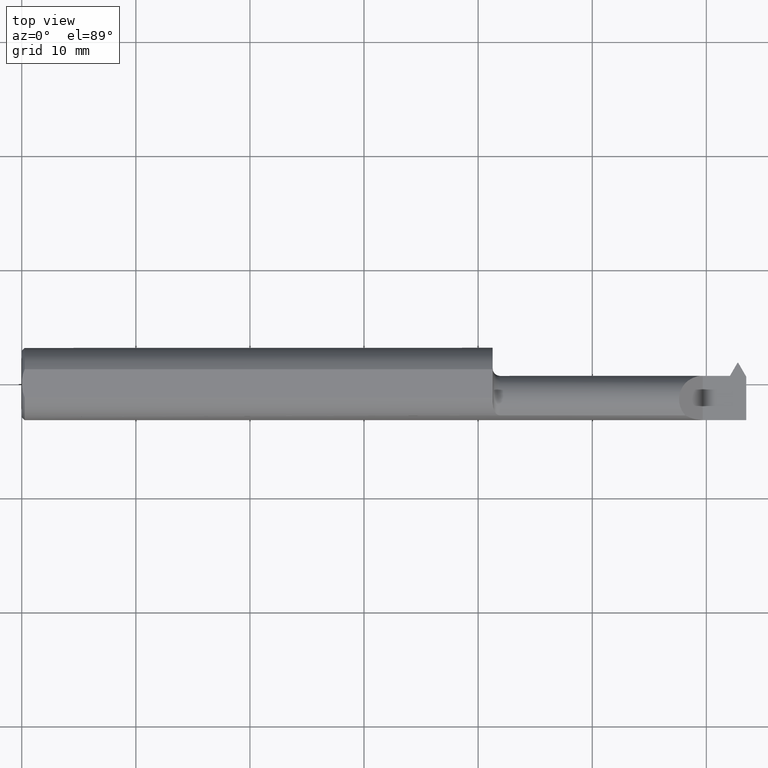
[diagram: clean part render]
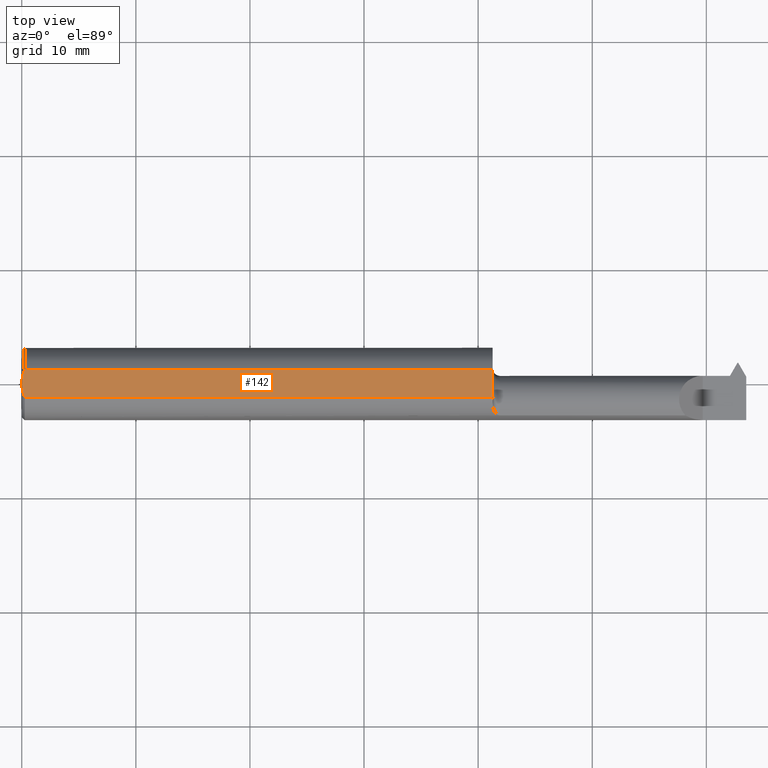
[diagram: same view with one face highlighted and labeled with its STEP entity id]
A machine part, top view. The second image highlights one B-rep face of the part: STEP entity #142.
In plain terms, the highlighted planar face has unit normal (0, 0, 1).
Its self-contained STEP definition (entity closure, byte-faithful):
#5 = EDGE_CURVE ( 'NONE', #692, #199, #251, .T. ) ;
#11 = LINE ( 'NONE', #623, #122 ) ;
#16 = CARTESIAN_POINT ( 'NONE',  ( 0.01000000000000014939, 0.04895916665957469188, 0.1148499999999999521 ) ) ;
#58 = CARTESIAN_POINT ( 'NONE',  ( -7.933430635897561254E-17, -0.008414813278457880172, 0.1148499999999999660 ) ) ;
#69 = CARTESIAN_POINT ( 'NONE',  ( 0.000000000000000000, -0.04895916665957469188, 0.1148499999999999521 ) ) ;
#73 = FACE_OUTER_BOUND ( 'NONE', #657, .T. ) ;
#81 = DIRECTION ( 'NONE',  ( 1.000000000000000000, 0.000000000000000000, 0.000000000000000000 ) ) ;
#99 = VECTOR ( 'NONE', #568, 39.37007874015748143 ) ;
#103 = ORIENTED_EDGE ( 'NONE', *, *, #531, .F. ) ;
#122 = VECTOR ( 'NONE', #195, 39.37007874015748143 ) ;
#133 = CARTESIAN_POINT ( 'NONE',  ( 1.625000000000000222, -0.04895916665957479597, 0.1148499999999999521 ) ) ;
#142 = ADVANCED_FACE ( 'NONE', ( #73 ), #262, .T. ) ;
#162 = EDGE_CURVE ( 'NONE', #467, #199, #11, .T. ) ;
#166 = CARTESIAN_POINT ( 'NONE',  ( 0.01000000000000014939, -0.04895916665957469188, 0.1148499999999999521 ) ) ;
#195 = DIRECTION ( 'NONE',  ( -1.000000000000000000, -0.000000000000000000, -0.000000000000000000 ) ) ;
#199 = VERTEX_POINT ( 'NONE', #16 ) ;
#227 = CARTESIAN_POINT ( 'NONE',  ( 0.004414493321357296045, -0.03313351293251454166, 0.1148499999999999660 ) ) ;
#228 = CARTESIAN_POINT ( 'NONE',  ( 0.000000000000000000, 0.000000000000000000, 0.1148499999999999521 ) ) ;
#246 = EDGE_CURVE ( 'NONE', #427, #551, #494, .T. ) ;
#249 = DIRECTION ( 'NONE',  ( 0.000000000000000000, 0.000000000000000000, 1.000000000000000000 ) ) ;
#251 = B_SPLINE_CURVE_WITH_KNOTS ( 'NONE', 3,
 ( #228, #532, #787, #778 ),
 .UNSPECIFIED., .F., .F.,
 ( 4, 4 ),
 ( 0.002328709147988536343, 0.003597800360742826626 ),
 .UNSPECIFIED. ) ;
#258 = CARTESIAN_POINT ( 'NONE',  ( 1.625000000000000222, 0.1248499999999999471, 0.1148499999999999521 ) ) ;
#262 = PLANE ( 'NONE',  #773 ) ;
#281 = ORIENTED_EDGE ( 'NONE', *, *, #162, .T. ) ;
#295 = ORIENTED_EDGE ( 'NONE', *, *, #246, .T. ) ;
#296 = CARTESIAN_POINT ( 'NONE',  ( 0.000000000000000000, 0.000000000000000000, 0.1148499999999999521 ) ) ;
#303 = DIRECTION ( 'NONE',  ( 1.000000000000000000, 0.000000000000000000, -0.000000000000000000 ) ) ;
#341 = CARTESIAN_POINT ( 'NONE',  ( 1.625000000000000222, 0.04895916665957469188, 0.1148499999999999521 ) ) ;
#362 = LINE ( 'NONE', #258, #99 ) ;
#379 = CARTESIAN_POINT ( 'NONE',  ( 2.752883550275615487, 0.1248500000000000026, 0.1148499999999999521 ) ) ;
#397 = B_SPLINE_CURVE_WITH_KNOTS ( 'NONE', 3,
 ( #729, #780, #227, #608, #58, #296 ),
 .UNSPECIFIED., .F., .F.,
 ( 4, 2, 4 ),
 ( 0.001059891666211653424, 0.001694300407100094883, 0.002328709147988536343 ),
 .UNSPECIFIED. ) ;
#411 = ORIENTED_EDGE ( 'NONE', *, *, #5, .F. ) ;
#427 = VERTEX_POINT ( 'NONE', #166 ) ;
#467 = VERTEX_POINT ( 'NONE', #341 ) ;
#494 = LINE ( 'NONE', #69, #637 ) ;
#531 = EDGE_CURVE ( 'NONE', #427, #692, #397, .T. ) ;
#532 = CARTESIAN_POINT ( 'NONE',  ( -8.474402044719765530E-17, 0.01683325733139112365, 0.1148499999999999521 ) ) ;
#537 = ORIENTED_EDGE ( 'NONE', *, *, #655, .T. ) ;
#551 = VERTEX_POINT ( 'NONE', #133 ) ;
#568 = DIRECTION ( 'NONE',  ( -5.250126673606354578E-17, 1.000000000000000000, 0.000000000000000000 ) ) ;
#608 = CARTESIAN_POINT ( 'NONE',  ( 0.0009329797661891488150, -0.01671851415607274530, 0.1148499999999999244 ) ) ;
#623 = CARTESIAN_POINT ( 'NONE',  ( 0.000000000000000000, 0.04895916665957469188, 0.1148499999999999521 ) ) ;
#637 = VECTOR ( 'NONE', #81, 39.37007874015748143 ) ;
#655 = EDGE_CURVE ( 'NONE', #551, #467, #362, .T. ) ;
#657 = EDGE_LOOP ( 'NONE', ( #295, #537, #281, #411, #103 ) ) ;
#692 = VERTEX_POINT ( 'NONE', #700 ) ;
#700 = CARTESIAN_POINT ( 'NONE',  ( 0.000000000000000000, 0.000000000000000000, 0.1148499999999999521 ) ) ;
#729 = CARTESIAN_POINT ( 'NONE',  ( 0.01000000000000014939, -0.04895916665957469188, 0.1148499999999999521 ) ) ;
#773 = AXIS2_PLACEMENT_3D ( 'NONE', #379, #249, #303 ) ;
#778 = CARTESIAN_POINT ( 'NONE',  ( 0.01000000000000014939, 0.04895916665957469188, 0.1148499999999999521 ) ) ;
#780 = CARTESIAN_POINT ( 'NONE',  ( 0.006957100361671281381, -0.04119951620459590125, 0.1148499999999999521 ) ) ;
#787 = CARTESIAN_POINT ( 'NONE',  ( 0.003881058084116530311, 0.03335534922718986356, 0.1148499999999999521 ) ) ;